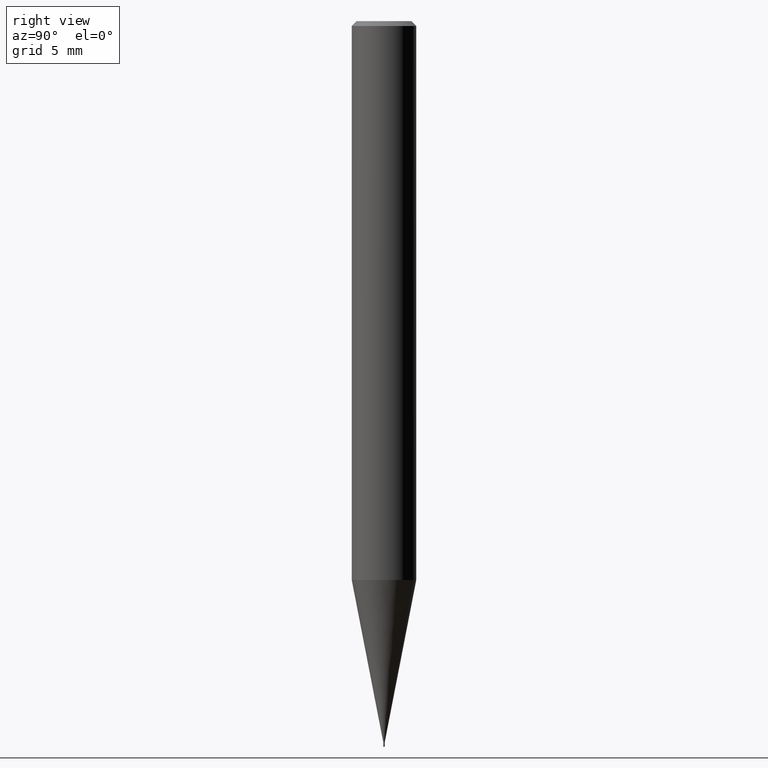
[diagram: clean part render]
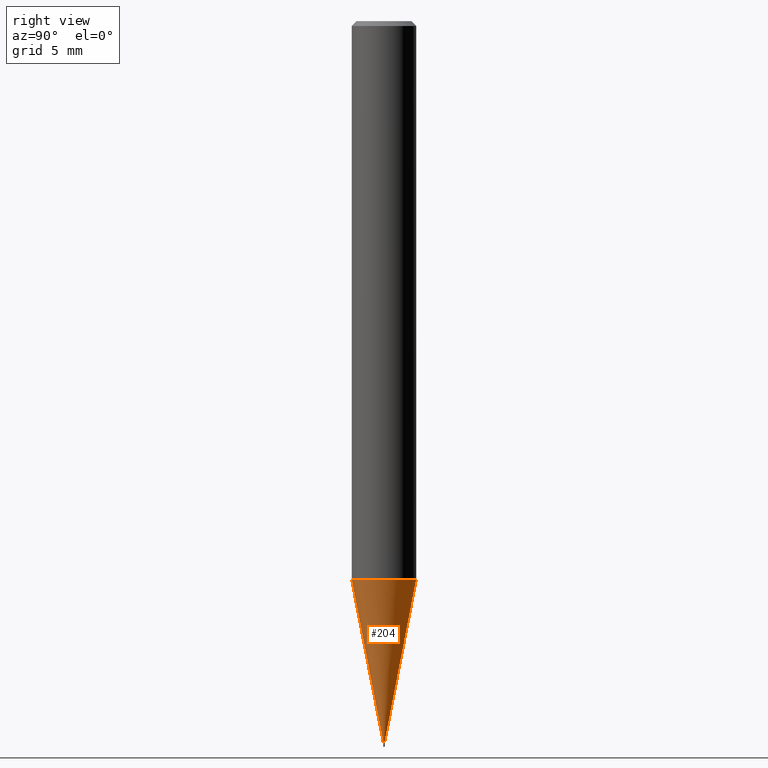
[diagram: same view with one face highlighted and labeled with its STEP entity id]
A machine part, right view. The second image highlights one B-rep face of the part: STEP entity #204.
In plain terms, the highlighted conical surface has half-angle 11 deg.
Its self-contained STEP definition (entity closure, byte-faithful):
#98=VERTEX_POINT('',#240);
#132=VERTEX_POINT('',#277);
#146=VERTEX_POINT('',#293);
#150=EDGE_CURVE('',#98,#132,#297,.T.);
#186=EDGE_CURVE('',#202,#132,#341,.T.);
#190=EDGE_CURVE('',#202,#146,#345,.T.);
#194=EDGE_CURVE('',#146,#98,#350,.T.);
#202=VERTEX_POINT('',#358);
#204=ADVANCED_FACE('',(#360),#361,.T.);
#240=CARTESIAN_POINT('',(5.81075714888718E-018,-0.04745,-44.7));
#277=CARTESIAN_POINT('',(2.44915147732706E-016,-1.99995,-34.655));
#293=CARTESIAN_POINT('',(0.0,0.04745,-44.7));
#297=LINE('',#463,#464);
#341=CIRCLE('',#515,1.99995);
#345=LINE('',#521,#522);
#350=CIRCLE('',#528,0.04745);
#358=CARTESIAN_POINT('',(0.0,1.99995,-34.655));
#360=FACE_OUTER_BOUND('',#540,.T.);
#361=CONICAL_SURFACE('',#541,1.0237,0.191981401646118);
#463=CARTESIAN_POINT('',(1.25362952440797E-016,-1.0237,-39.6775));
#464=VECTOR('',#633,1.0);
#515=AXIS2_PLACEMENT_3D('',#702,#703,#704);
#521=CARTESIAN_POINT('',(-1.25362952440797E-016,1.0237,-39.6775));
#522=VECTOR('',#708,1.0);
#528=AXIS2_PLACEMENT_3D('',#717,#718,#719);
#540=EDGE_LOOP('',(#722,#723,#724,#725));
#541=AXIS2_PLACEMENT_3D('',#726,#727,#728);
#633=DIRECTION('',(2.33660118667044E-017,-0.190804267785904,0.98162810238638));
#702=CARTESIAN_POINT('',(0.0,0.0,-34.655));
#703=DIRECTION('',(0.0,0.0,-1.0));
#704=DIRECTION('',(0.0,1.0,0.0));
#708=DIRECTION('',(2.33660118667044E-017,-0.190804267785904,-0.98162810238638));
#717=CARTESIAN_POINT('',(0.0,0.0,-44.7));
#718=DIRECTION('',(0.0,0.0,-1.0));
#719=DIRECTION('',(0.0,1.0,0.0));
#722=ORIENTED_EDGE('',*,*,#190,.F.);
#723=ORIENTED_EDGE('',*,*,#186,.T.);
#724=ORIENTED_EDGE('',*,*,#150,.F.);
#725=ORIENTED_EDGE('',*,*,#194,.F.);
#726=CARTESIAN_POINT('',(0.0,0.0,-39.6775));
#727=DIRECTION('',(-0.0,-0.0,1.0));
#728=DIRECTION('',(0.0,1.0,0.0));